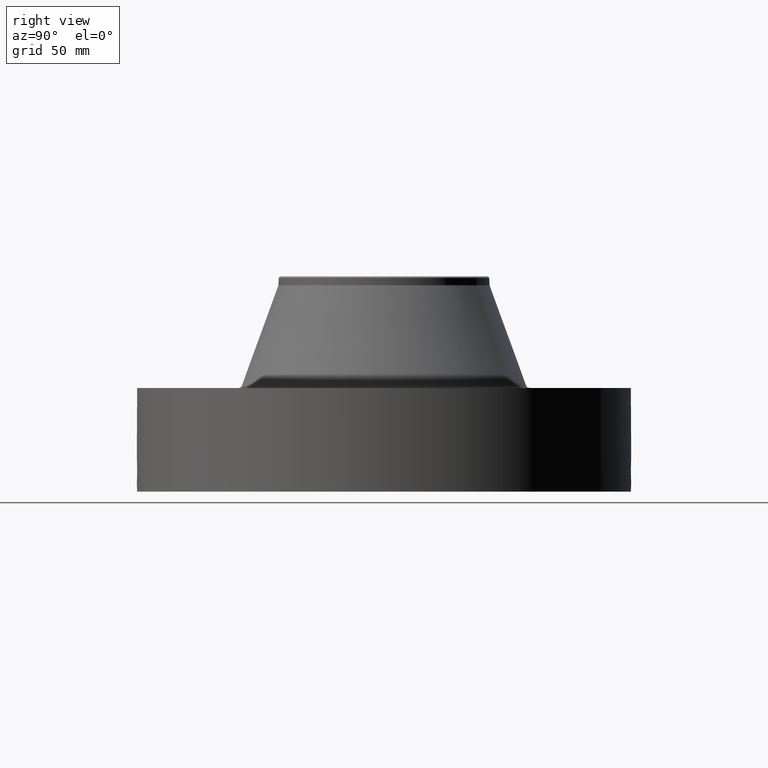
[diagram: clean part render]
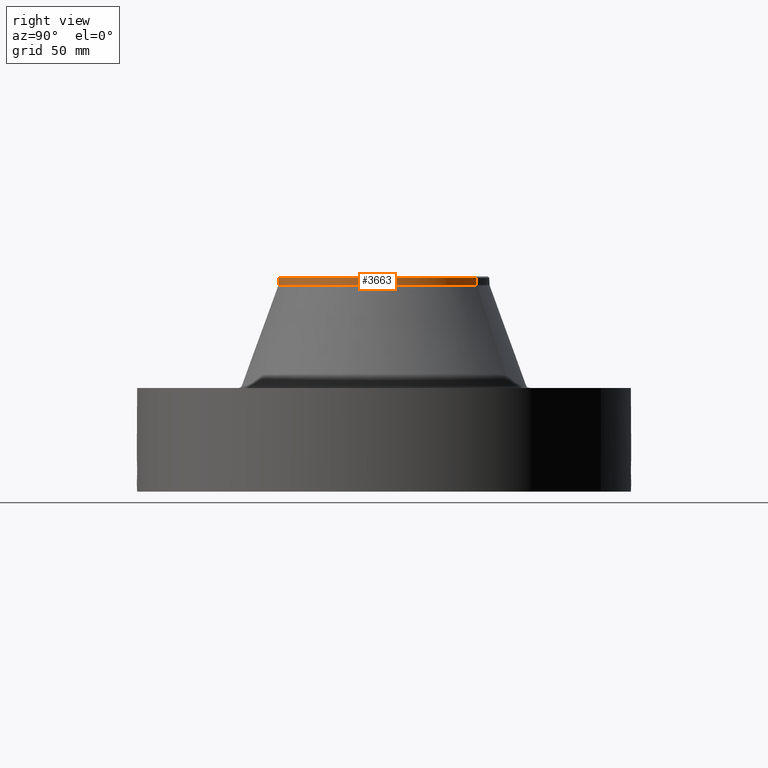
[diagram: same view with one face highlighted and labeled with its STEP entity id]
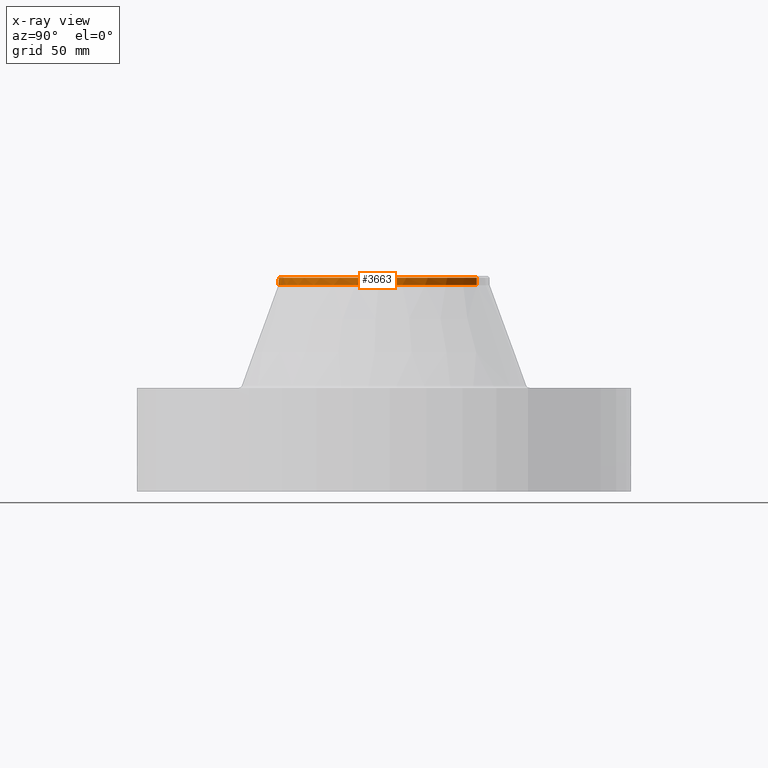
[diagram: x-ray of the same camera — body ghosted, the highlighted face saturated]
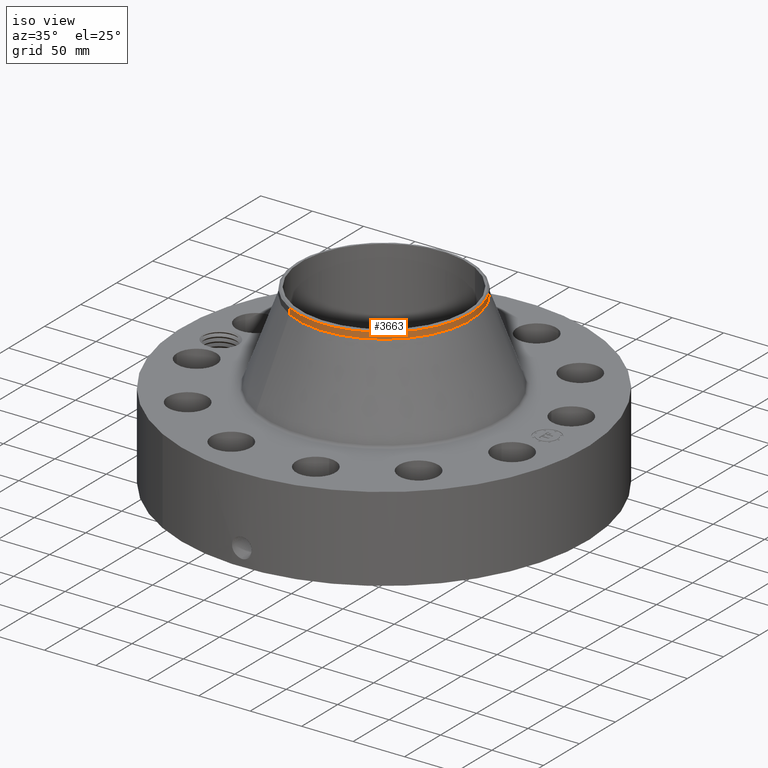
[diagram: same view with one face highlighted and labeled with its STEP entity id]
A machine part, right view. The second image highlights one B-rep face of the part: STEP entity #3663.
The next image is the same camera in x-ray: the body ghosted, the highlighted face saturated — about 0% of this face is hidden behind the body in this view.
A second angle (iso view) of the same face is appended — the face is thin or edge-on in the first view.
In plain terms, the highlighted cylindrical surface (partial cylindrical patch) has radius 84.201 mm, axis along (0, 0, -1).
Its self-contained STEP definition (entity closure, byte-faithful):
#2826=AXIS2_PLACEMENT_3D('Circle Axis2P3D',#2824,#2825,$) ;
#3293=AXIS2_PLACEMENT_3D('Circle Axis2P3D',#3291,#3292,$) ;
#3306=AXIS2_PLACEMENT_3D('Circle Axis2P3D',#3304,#3305,$) ;
#3644=AXIS2_PLACEMENT_3D('Cylinder Axis2P3D',#3641,#3642,#3643) ;
#2821=CARTESIAN_POINT('Vertex',(1.58929566048,2.90918619268,6.7194588416)) ;
#2824=CARTESIAN_POINT('Axis2P3D Location',(0.,0.,6.7194588416)) ;
#2828=CARTESIAN_POINT('Vertex',(-1.58929566048,-2.90918619268,6.7194588416)) ;
#3274=CARTESIAN_POINT('Vertex',(1.58929566048,-2.90918619268,6.95567931404)) ;
#3288=CARTESIAN_POINT('Vertex',(-1.58929566048,-2.90918619268,6.95567931404)) ;
#3291=CARTESIAN_POINT('Axis2P3D Location',(0.,0.,6.95567931404)) ;
#3304=CARTESIAN_POINT('Axis2P3D Location',(0.,0.,6.95567931404)) ;
#3308=CARTESIAN_POINT('Vertex',(1.58929566048,2.90918619268,6.95567931404)) ;
#3641=CARTESIAN_POINT('Axis2P3D Location',(0.,0.,3.62500000001)) ;
#3646=CARTESIAN_POINT('Line Origine',(-1.58929566048,-2.90918619268,6.83756907782)) ;
#3651=CARTESIAN_POINT('Line Origine',(1.58929566048,2.90918619268,6.83756907782)) ;
#2825=DIRECTION('Axis2P3D Direction',(0.,0.,-0.0393700787402)) ;
#3292=DIRECTION('Axis2P3D Direction',(0.,0.,-0.0393700787402)) ;
#3305=DIRECTION('Axis2P3D Direction',(0.,0.,-0.0393700787402)) ;
#3642=DIRECTION('Axis2P3D Direction',(0.,0.,-0.0393700787402)) ;
#3643=DIRECTION('Axis2P3D XDirection',(-0.0188750212049,-0.0345504945626,0.)) ;
#3647=DIRECTION('Vector Direction',(0.,0.,-0.0393700787402)) ;
#3652=DIRECTION('Vector Direction',(0.,0.,-0.0393700787402)) ;
#3648=VECTOR('Line Direction',#3647,0.0393700787402) ;
#3653=VECTOR('Line Direction',#3652,0.0393700787402) ;
#3657=ORIENTED_EDGE('',*,*,#3650,.F.) ;
#3658=ORIENTED_EDGE('',*,*,#2830,.F.) ;
#3659=ORIENTED_EDGE('',*,*,#3655,.T.) ;
#3660=ORIENTED_EDGE('',*,*,#3310,.F.) ;
#3661=ORIENTED_EDGE('',*,*,#3295,.T.) ;
#3663=ADVANCED_FACE('PartBody',(#3662),#3645,.T.) ;
#2827=CIRCLE('generated circle',#2826,3.31500000001) ;
#3294=CIRCLE('generated circle',#3293,3.31500000001) ;
#3307=CIRCLE('generated circle',#3306,3.31500000001) ;
#3645=CYLINDRICAL_SURFACE('generated cylinder',#3644,3.31500000001) ;
#2830=EDGE_CURVE('',#2822,#2829,#2827,.T.) ;
#3295=EDGE_CURVE('',#3275,#3289,#3294,.T.) ;
#3310=EDGE_CURVE('',#3275,#3309,#3307,.F.) ;
#3650=EDGE_CURVE('',#2829,#3289,#3649,.F.) ;
#3655=EDGE_CURVE('',#2822,#3309,#3654,.F.) ;
#3656=EDGE_LOOP('',(#3657,#3658,#3659,#3660,#3661)) ;
#3662=FACE_OUTER_BOUND('',#3656,.T.) ;
#3649=LINE('Line',#3646,#3648) ;
#3654=LINE('Line',#3651,#3653) ;
#2822=VERTEX_POINT('',#2821) ;
#2829=VERTEX_POINT('',#2828) ;
#3275=VERTEX_POINT('',#3274) ;
#3289=VERTEX_POINT('',#3288) ;
#3309=VERTEX_POINT('',#3308) ;